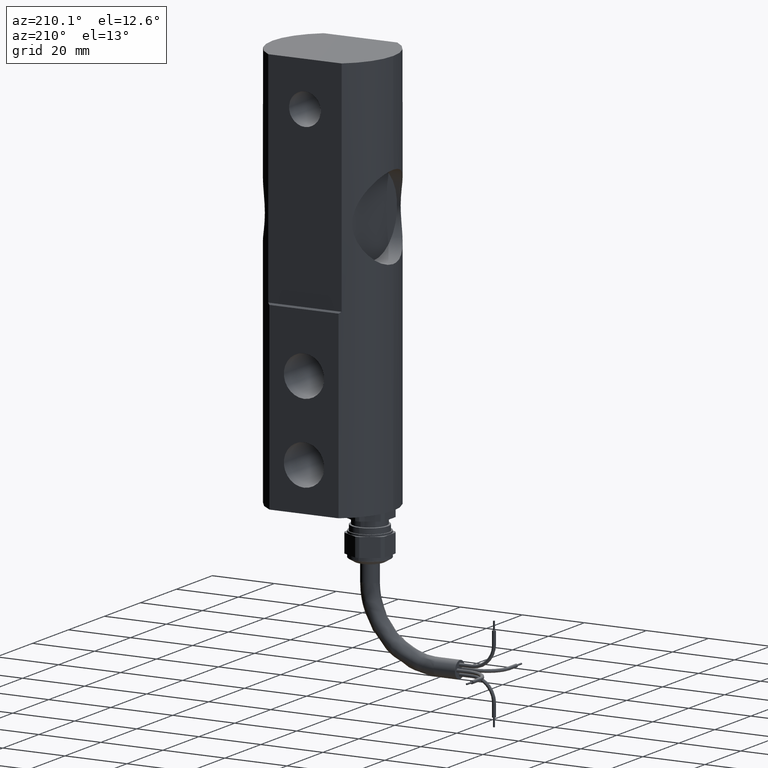
[diagram: clean part render]
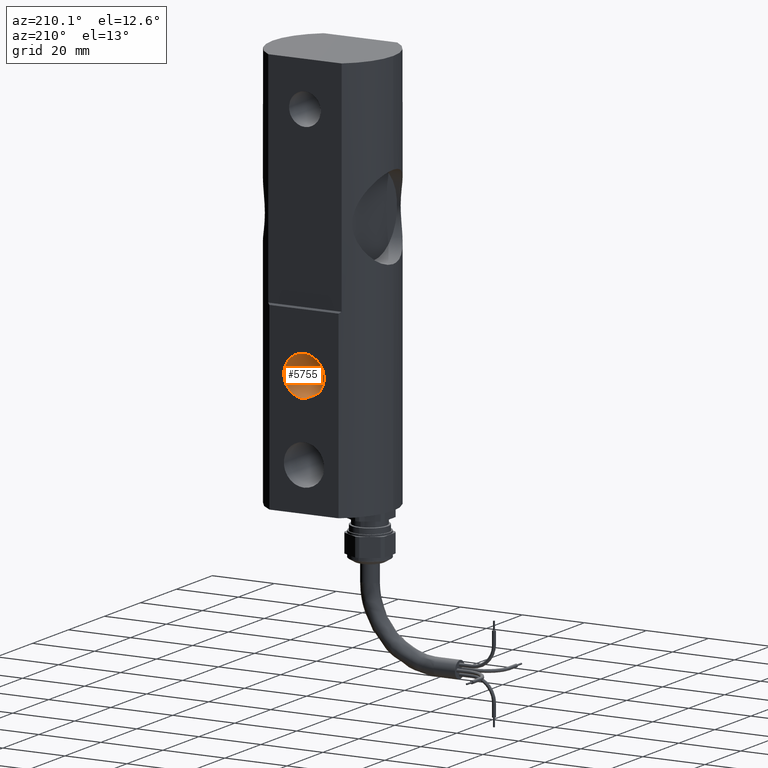
[diagram: same view with one face highlighted and labeled with its STEP entity id]
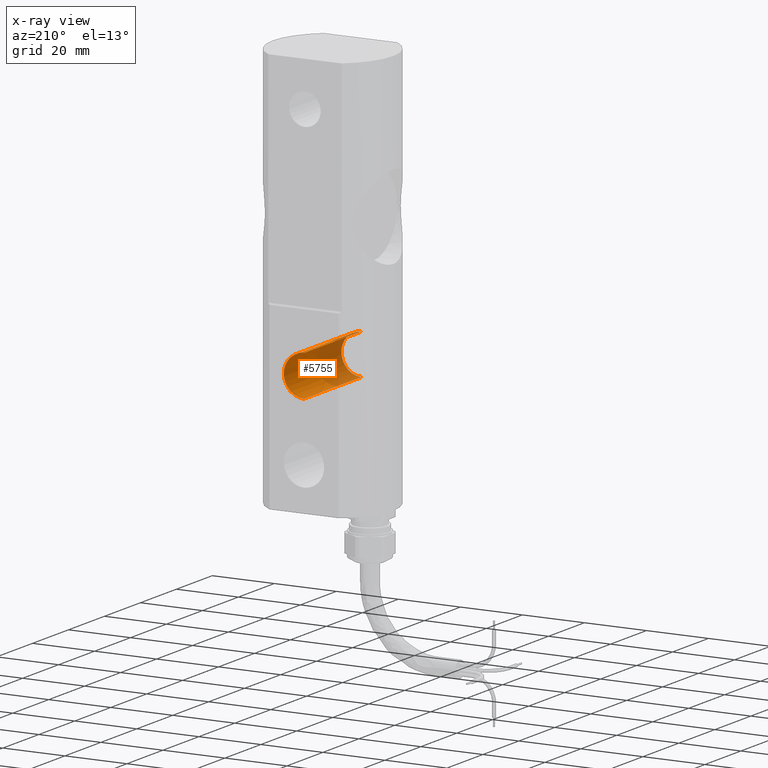
[diagram: x-ray of the same camera — body ghosted, the highlighted face saturated]
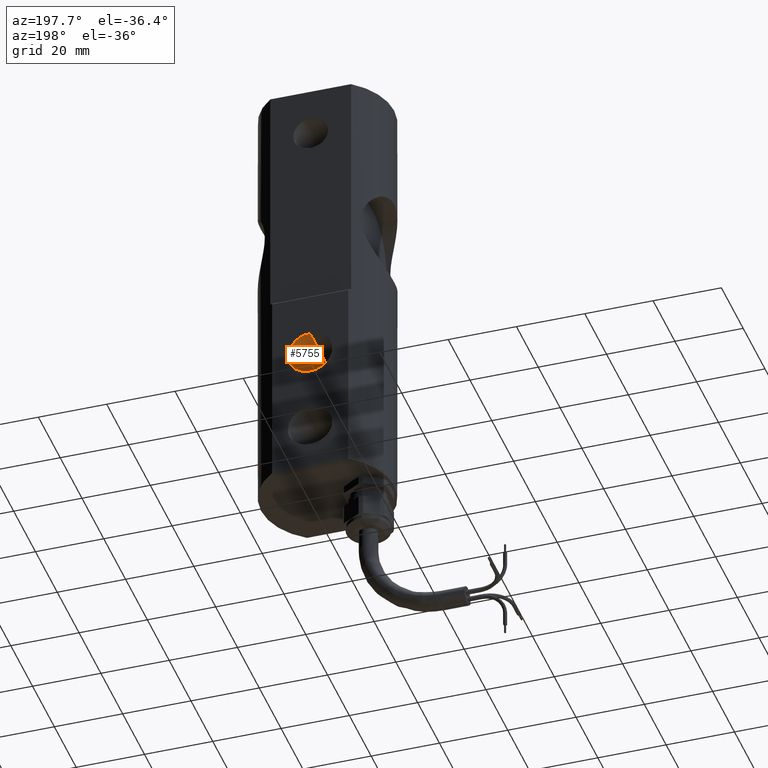
[diagram: same view with one face highlighted and labeled with its STEP entity id]
A machine part, auxiliary view. The second image highlights one B-rep face of the part: STEP entity #5755.
The next image is the same camera in x-ray: the body ghosted, the highlighted face saturated — about 41% of this face is hidden behind the body in this view.
A second angle (auxiliary view) of the same face is appended — the face is thin or edge-on in the first view.
In plain terms, the highlighted cylindrical surface (edge-blend (fillet) strip) has radius 6.5 mm, axis along (0, 1, 0).
Its self-contained STEP definition (entity closure, byte-faithful):
#39 = LINE ( 'NONE', #6772, #7241 ) ;
#828 = VERTEX_POINT ( 'NONE', #2605 ) ;
#846 = EDGE_CURVE ( 'NONE', #828, #7773, #3255, .T. ) ;
#891 = CARTESIAN_POINT ( 'NONE',  ( -3.766816292597448044E-14, 0.6299212598425198983, -1.263779527559055094 ) ) ;
#1030 = AXIS2_PLACEMENT_3D ( 'NONE', #3017, #1217, #1136 ) ;
#1136 = DIRECTION ( 'NONE',  ( 0.000000000000000000, 0.000000000000000000, 1.000000000000000000 ) ) ;
#1217 = DIRECTION ( 'NONE',  ( 0.000000000000000000, 1.000000000000000000, 0.000000000000000000 ) ) ;
#1347 = DIRECTION ( 'NONE',  ( 0.000000000000000000, 1.000000000000000000, 0.000000000000000000 ) ) ;
#1367 = EDGE_LOOP ( 'NONE', ( #3718, #1878, #7170, #5529 ) ) ;
#1680 = DIRECTION ( 'NONE',  ( 0.000000000000000000, 0.000000000000000000, 1.000000000000000000 ) ) ;
#1802 = DIRECTION ( 'NONE',  ( 0.000000000000000000, 1.000000000000000000, 0.000000000000000000 ) ) ;
#1878 = ORIENTED_EDGE ( 'NONE', *, *, #846, .T. ) ;
#2445 = CYLINDRICAL_SURFACE ( 'NONE', #7556, 0.2559055118110235560 ) ;
#2593 = CARTESIAN_POINT ( 'NONE',  ( -3.769950231256682965E-14, -0.6299212598425198983, -0.7519685039370078705 ) ) ;
#2605 = CARTESIAN_POINT ( 'NONE',  ( -3.766816292597448044E-14, -0.6299212598425198983, -1.263779527559055094 ) ) ;
#2718 = DIRECTION ( 'NONE',  ( -0.000000000000000000, -1.000000000000000000, -0.000000000000000000 ) ) ;
#3017 = CARTESIAN_POINT ( 'NONE',  ( -3.769950231256682965E-14, 0.6299212598425198983, -1.007874015748031482 ) ) ;
#3251 = LINE ( 'NONE', #2593, #3623 ) ;
#3255 = CIRCLE ( 'NONE', #4288, 0.2559055118110235560 ) ;
#3623 = VECTOR ( 'NONE', #1347, 39.37007874015748143 ) ;
#3718 = ORIENTED_EDGE ( 'NONE', *, *, #5384, .F. ) ;
#4288 = AXIS2_PLACEMENT_3D ( 'NONE', #5872, #2718, #6317 ) ;
#4622 = CARTESIAN_POINT ( 'NONE',  ( -3.776218108575154069E-14, -0.6299212598425198983, -0.7519685039370078705 ) ) ;
#4717 = EDGE_CURVE ( 'NONE', #7773, #6816, #3251, .T. ) ;
#4840 = FACE_OUTER_BOUND ( 'NONE', #1367, .T. ) ;
#5384 = EDGE_CURVE ( 'NONE', #828, #6688, #39, .T. ) ;
#5529 = ORIENTED_EDGE ( 'NONE', *, *, #7183, .T. ) ;
#5755 = ADVANCED_FACE ( 'NONE', ( #4840 ), #2445, .F. ) ;
#5872 = CARTESIAN_POINT ( 'NONE',  ( -3.769950231256682965E-14, -0.6299212598425198983, -1.007874015748031482 ) ) ;
#6132 = DIRECTION ( 'NONE',  ( 0.000000000000000000, 1.000000000000000000, 0.000000000000000000 ) ) ;
#6317 = DIRECTION ( 'NONE',  ( 0.000000000000000000, 0.000000000000000000, 1.000000000000000000 ) ) ;
#6590 = CARTESIAN_POINT ( 'NONE',  ( -3.769950231256682965E-14, 0.6299212598425198983, -0.7519685039370078705 ) ) ;
#6688 = VERTEX_POINT ( 'NONE', #891 ) ;
#6772 = CARTESIAN_POINT ( 'NONE',  ( -3.766816292597448044E-14, -0.6299212598425198983, -1.263779527559055094 ) ) ;
#6816 = VERTEX_POINT ( 'NONE', #6590 ) ;
#6918 = CIRCLE ( 'NONE', #1030, 0.2559055118110235560 ) ;
#7170 = ORIENTED_EDGE ( 'NONE', *, *, #4717, .T. ) ;
#7183 = EDGE_CURVE ( 'NONE', #6816, #6688, #6918, .T. ) ;
#7241 = VECTOR ( 'NONE', #6132, 39.37007874015748143 ) ;
#7556 = AXIS2_PLACEMENT_3D ( 'NONE', #7837, #1802, #1680 ) ;
#7773 = VERTEX_POINT ( 'NONE', #4622 ) ;
#7837 = CARTESIAN_POINT ( 'NONE',  ( -3.769950231256682965E-14, -0.6299212598425198983, -1.007874015748031482 ) ) ;